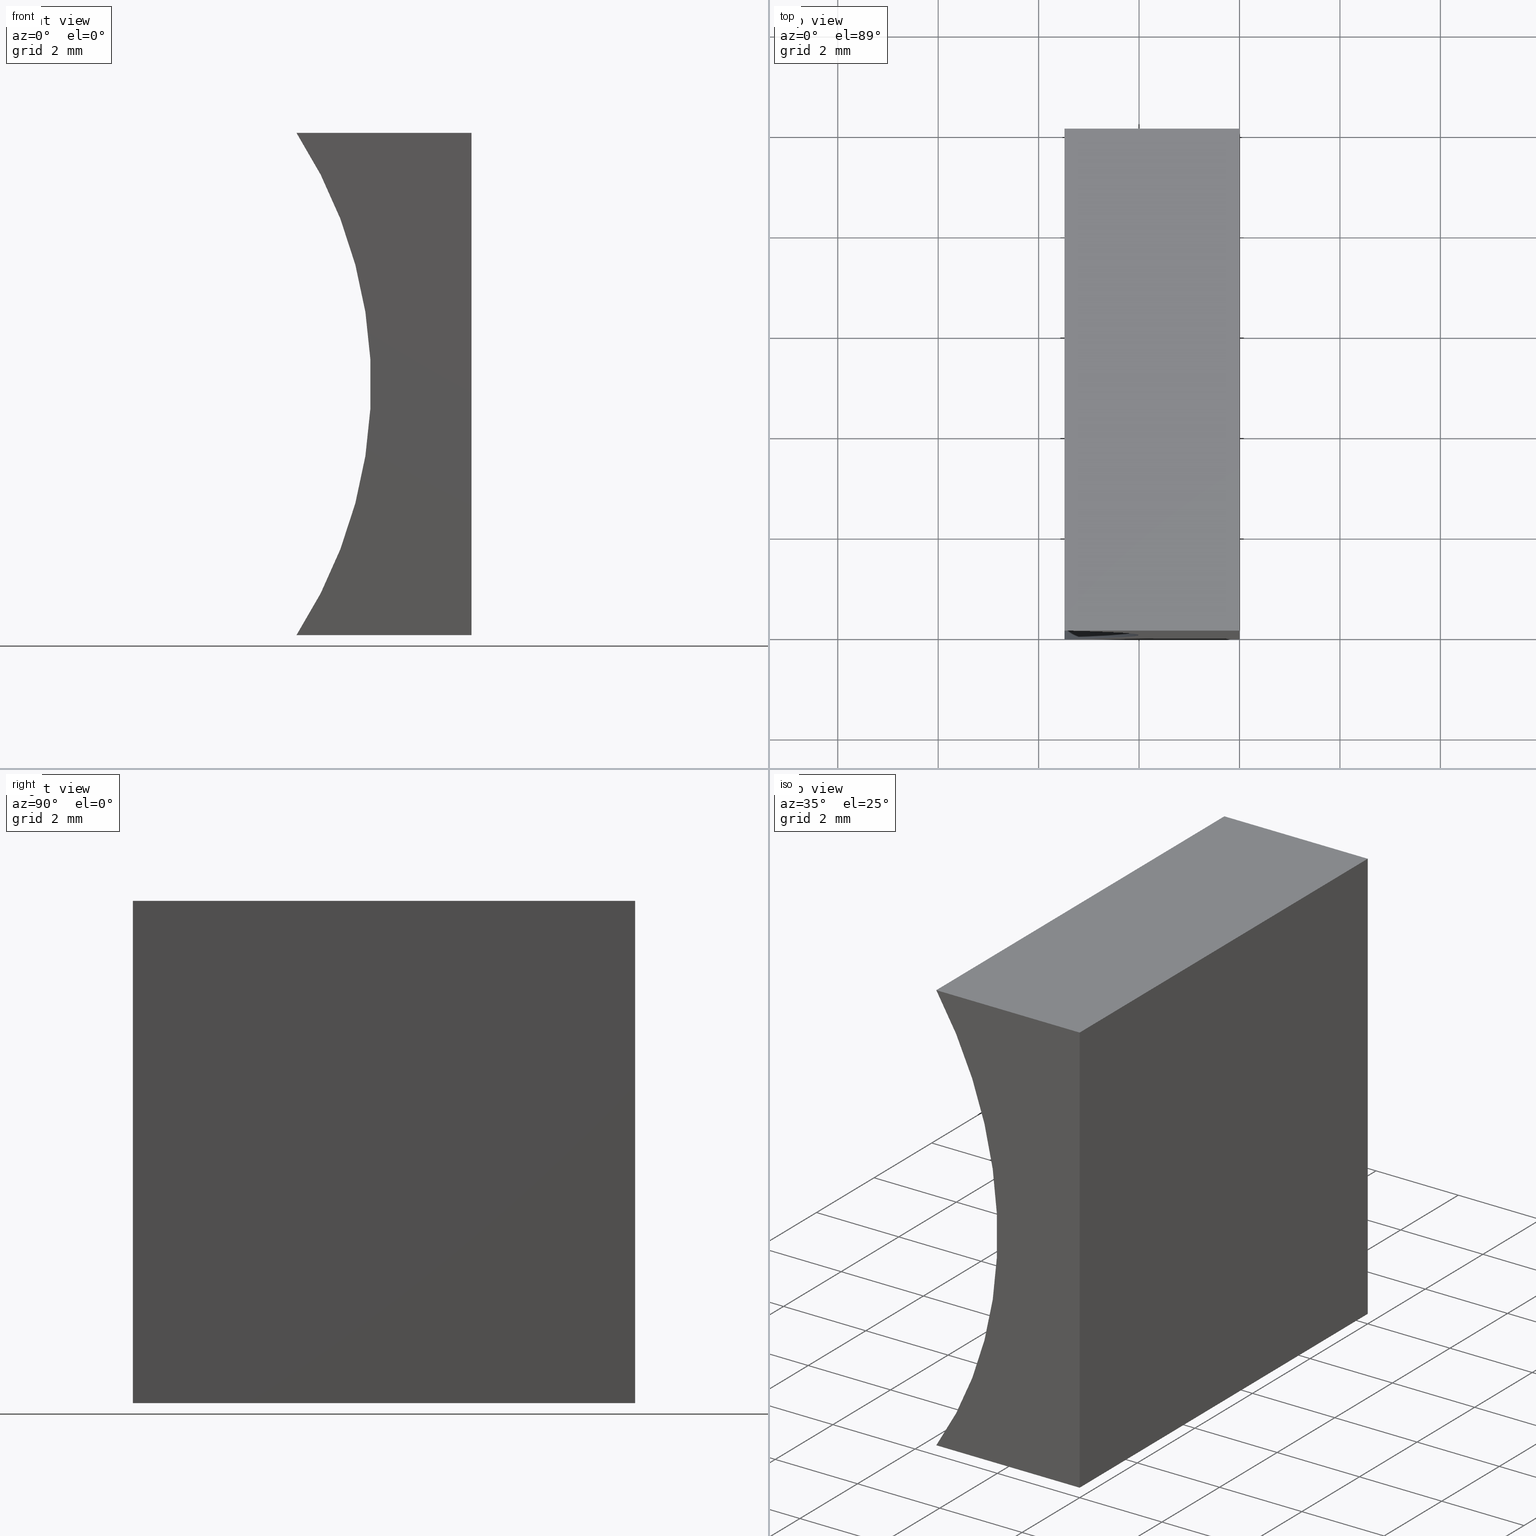
[diagram: canonical four-view strip — front | top / right | iso, engineering-drawing reading convention]
A machine part, canonical four-view strip (front | top / right | iso — engineering-drawing reading convention). The complete STEP part file that produces these views, byte-faithful:
ISO-10303-21;
HEADER;
FILE_DESCRIPTION (( 'STEP AP214' ),
    '1' );
FILE_NAME ('155465.STEP',
    '2019-07-03T03:49:38',
    ( 'user' ),
    ( '΢���й�' ),
    'SwSTEP 2.0',
    'SolidWorks 2016',
    '' );
FILE_SCHEMA (( 'AUTOMOTIVE_DESIGN' ));
ENDSEC;

DATA;
#1 = EDGE_CURVE ( 'NONE', #100, #26, #16, .T. ) ;
#2 =( LENGTH_UNIT ( ) NAMED_UNIT ( * ) SI_UNIT ( .MILLI., .METRE. ) );
#3 = ORIENTED_EDGE ( 'NONE', *, *, #176, .F. ) ;
#4 = LINE ( 'NONE', #69, #18 ) ;
#5 = DIRECTION ( 'NONE',  ( -1.000000000000000000, 0.0000000000000000000, -0.0000000000000000000 ) ) ;
#6 = PRODUCT_RELATED_PRODUCT_CATEGORY ( 'part', '', ( #42 ) ) ;
#7 = CARTESIAN_POINT ( 'NONE',  ( -3.485001628664668800, 0.0000000000000000000, 10.00000000000000000 ) ) ;
#8 = DIRECTION ( 'NONE',  ( 1.701271715540641700E-016, -0.0000000000000000000, 1.000000000000000000 ) ) ;
#9 = LINE ( 'NONE', #144, #12 ) ;
#10 = SURFACE_SIDE_STYLE ('',( #76 ) ) ;
#11 = PRESENTATION_LAYER_ASSIGNMENT (  '', '', ( #103 ) ) ;
#12 = VECTOR ( 'NONE', #32, 1000.000000000000000 ) ;
#13 =( GEOMETRIC_REPRESENTATION_CONTEXT ( 3 ) GLOBAL_UNCERTAINTY_ASSIGNED_CONTEXT ( ( #107 ) ) GLOBAL_UNIT_ASSIGNED_CONTEXT ( ( #173, #62, #189 ) ) REPRESENTATION_CONTEXT ( 'NONE', 'WORKASPACE' ) );
#14 = EDGE_LOOP ( 'NONE', ( #67, #156, #117, #56 ) ) ;
#15 = DIRECTION ( 'NONE',  ( 0.0000000000000000000, 0.0000000000000000000, 1.000000000000000000 ) ) ;
#16 = CIRCLE ( 'NONE', #204, 9.159999999999998400 ) ;
#17 = EDGE_CURVE ( 'NONE', #105, #137, #150, .T. ) ;
#18 = VECTOR ( 'NONE', #97, 1000.000000000000000 ) ;
#19 = CARTESIAN_POINT ( 'NONE',  ( 0.0000000000000000000, 10.00000000000000000, 0.0000000000000000000 ) ) ;
#20 = CARTESIAN_POINT ( 'NONE',  ( 0.0000000000000000000, 0.0000000000000000000, 0.0000000000000000000 ) ) ;
#21 = CARTESIAN_POINT ( 'NONE',  ( -11.16000000000000000, 0.0000000000000000000, 5.000000000000000900 ) ) ;
#22 = FILL_AREA_STYLE_COLOUR ( '', #202 ) ;
#23 =( LENGTH_UNIT ( ) NAMED_UNIT ( * ) SI_UNIT ( .MILLI., .METRE. ) );
#24 = VECTOR ( 'NONE', #160, 1000.000000000000000 ) ;
#25 = EDGE_LOOP ( 'NONE', ( #39, #58, #73, #3 ) ) ;
#26 = VERTEX_POINT ( 'NONE', #109 ) ;
#27 = LINE ( 'NONE', #126, #112 ) ;
#28 = DIRECTION ( 'NONE',  ( 1.000000000000000000, -0.0000000000000000000, -0.0000000000000000000 ) ) ;
#29 = DIRECTION ( 'NONE',  ( 0.0000000000000000000, 0.0000000000000000000, -1.000000000000000000 ) ) ;
#30 = PRESENTATION_LAYER_ASSIGNMENT (  '', '', ( #55 ) ) ;
#31 = FACE_OUTER_BOUND ( 'NONE', #14, .T. ) ;
#32 = DIRECTION ( 'NONE',  ( -1.000000000000000000, 0.0000000000000000000, 1.701271715540642000E-016 ) ) ;
#33 = MECHANICAL_DESIGN_GEOMETRIC_PRESENTATION_REPRESENTATION (  '', ( #55 ), #13 ) ;
#34 = DIRECTION ( 'NONE',  ( 0.0000000000000000000, -0.0000000000000000000, 1.000000000000000000 ) ) ;
#35 = VECTOR ( 'NONE', #66, 1000.000000000000000 ) ;
#36 = CARTESIAN_POINT ( 'NONE',  ( -11.16000000000000000, 0.0000000000000000000, 5.000000000000000900 ) ) ;
#37 =( NAMED_UNIT ( * ) SI_UNIT ( $, .STERADIAN. ) SOLID_ANGLE_UNIT ( ) );
#38 = EDGE_CURVE ( 'NONE', #137, #45, #172, .T. ) ;
#39 = ORIENTED_EDGE ( 'NONE', *, *, #38, .F. ) ;
#40 = AXIS2_PLACEMENT_3D ( 'NONE', #124, #121, #29 ) ;
#41 = ORIENTED_EDGE ( 'NONE', *, *, #151, .T. ) ;
#42 = PRODUCT ( '155465', '155465', '', ( #166 ) ) ;
#43 = AXIS2_PLACEMENT_3D ( 'NONE', #64, #98, #5 ) ;
#44 = SURFACE_STYLE_USAGE ( .BOTH. , #157 ) ;
#45 = VERTEX_POINT ( 'NONE', #174 ) ;
#46 = CARTESIAN_POINT ( 'NONE',  ( -3.485001628664670600, 10.00000000000000000, 1.734723475976807100E-015 ) ) ;
#47 = DIRECTION ( 'NONE',  ( -1.000000000000000000, 0.0000000000000000000, 6.123233995736766000E-017 ) ) ;
#48 = AXIS2_PLACEMENT_3D ( 'NONE', #36, #152, #50 ) ;
#49 = CARTESIAN_POINT ( 'NONE',  ( 6.123233995736766300E-016, 0.0000000000000000000, 10.00000000000000000 ) ) ;
#50 = DIRECTION ( 'NONE',  ( 0.0000000000000000000, 0.0000000000000000000, 1.000000000000000000 ) ) ;
#51 = ORIENTED_EDGE ( 'NONE', *, *, #130, .F. ) ;
#52 =( NAMED_UNIT ( * ) PLANE_ANGLE_UNIT ( ) SI_UNIT ( $, .RADIAN. ) );
#53 = VECTOR ( 'NONE', #163, 1000.000000000000000 ) ;
#54 = DIRECTION ( 'NONE',  ( 0.0000000000000000000, 0.0000000000000000000, 1.000000000000000000 ) ) ;
#55 = STYLED_ITEM ( 'NONE', ( #115 ), #90 ) ;
#56 = ORIENTED_EDGE ( 'NONE', *, *, #17, .T. ) ;
#57 = ADVANCED_FACE ( 'NONE', ( #89 ), #93, .T. ) ;
#58 = ORIENTED_EDGE ( 'NONE', *, *, #151, .F. ) ;
#59 = UNCERTAINTY_MEASURE_WITH_UNIT (LENGTH_MEASURE( 1.000000000000000100E-005 ), #2, 'distance_accuracy_value', 'NONE');
#60 =( GEOMETRIC_REPRESENTATION_CONTEXT ( 3 ) GLOBAL_UNCERTAINTY_ASSIGNED_CONTEXT ( ( #149 ) ) GLOBAL_UNIT_ASSIGNED_CONTEXT ( ( #23, #133, #37 ) ) REPRESENTATION_CONTEXT ( 'NONE', 'WORKASPACE' ) );
#61 = VECTOR ( 'NONE', #80, 1000.000000000000000 ) ;
#62 =( NAMED_UNIT ( * ) PLANE_ANGLE_UNIT ( ) SI_UNIT ( $, .RADIAN. ) );
#63 = AXIS2_PLACEMENT_3D ( 'NONE', #159, #128, #34 ) ;
#64 = CARTESIAN_POINT ( 'NONE',  ( 6.123233995736766300E-016, 10.00000000000000000, 10.00000000000000000 ) ) ;
#65 = CARTESIAN_POINT ( 'NONE',  ( 0.0000000000000000000, 0.0000000000000000000, 0.0000000000000000000 ) ) ;
#66 = DIRECTION ( 'NONE',  ( -6.123233995736766000E-017, -0.0000000000000000000, -1.000000000000000000 ) ) ;
#67 = ORIENTED_EDGE ( 'NONE', *, *, #38, .T. ) ;
#68 = LINE ( 'NONE', #49, #108 ) ;
#69 = CARTESIAN_POINT ( 'NONE',  ( -3.485001628664670600, 10.00000000000000000, 1.734723475976807100E-015 ) ) ;
#70 = APPLICATION_CONTEXT ( 'automotive_design' ) ;
#71 = EDGE_CURVE ( 'NONE', #105, #100, #9, .T. ) ;
#72 = ADVANCED_FACE ( 'NONE', ( #168 ), #95, .F. ) ;
#73 = ORIENTED_EDGE ( 'NONE', *, *, #118, .F. ) ;
#74 = FACE_OUTER_BOUND ( 'NONE', #119, .T. ) ;
#75 = VERTEX_POINT ( 'NONE', #158 ) ;
#76 = SURFACE_STYLE_FILL_AREA ( #102 ) ;
#77 = PRODUCT_DEFINITION ( 'δ֪', '', #200, #183 ) ;
#78 =( GEOMETRIC_REPRESENTATION_CONTEXT ( 3 ) GLOBAL_UNCERTAINTY_ASSIGNED_CONTEXT ( ( #59 ) ) GLOBAL_UNIT_ASSIGNED_CONTEXT ( ( #2, #52, #164 ) ) REPRESENTATION_CONTEXT ( 'NONE', 'WORKASPACE' ) );
#79 = EDGE_LOOP ( 'NONE', ( #136, #122, #165, #134 ) ) ;
#80 = DIRECTION ( 'NONE',  ( -1.000000000000000000, 0.0000000000000000000, 1.701271715540642000E-016 ) ) ;
#81 = DIRECTION ( 'NONE',  ( -0.0000000000000000000, -1.000000000000000000, -0.0000000000000000000 ) ) ;
#82 = DIRECTION ( 'NONE',  ( 0.0000000000000000000, 1.000000000000000000, 0.0000000000000000000 ) ) ;
#83 = ORIENTED_EDGE ( 'NONE', *, *, #17, .F. ) ;
#84 = DIRECTION ( 'NONE',  ( -6.123233995736766000E-017, -0.0000000000000000000, -1.000000000000000000 ) ) ;
#85 = PRESENTATION_STYLE_ASSIGNMENT (( #114 ) ) ;
#86 = CARTESIAN_POINT ( 'NONE',  ( -3.485001628664668800, 10.00000000000000000, 10.00000000000000000 ) ) ;
#87 = ORIENTED_EDGE ( 'NONE', *, *, #170, .T. ) ;
#88 = APPLICATION_PROTOCOL_DEFINITION ( 'draft international standard', 'automotive_design', 1998, #70 ) ;
#89 = FACE_OUTER_BOUND ( 'NONE', #92, .T. ) ;
#90 = MANIFOLD_SOLID_BREP ( '͹̨-����1', #139 ) ;
#91 = ADVANCED_BREP_SHAPE_REPRESENTATION ( '155465', ( #90, #187 ), #78 ) ;
#92 = EDGE_LOOP ( 'NONE', ( #198, #178, #153, #188 ) ) ;
#93 = PLANE ( 'NONE',  #63 ) ;
#94 = CARTESIAN_POINT ( 'NONE',  ( -11.16000000000000000, 10.00000000000000000, 5.000000000000000900 ) ) ;
#95 = CYLINDRICAL_SURFACE ( 'NONE', #40, 9.159999999999998400 ) ;
#96 = LINE ( 'NONE', #131, #53 ) ;
#97 = DIRECTION ( 'NONE',  ( -0.0000000000000000000, -1.000000000000000000, -0.0000000000000000000 ) ) ;
#98 = DIRECTION ( 'NONE',  ( 0.0000000000000000000, 0.0000000000000000000, -1.000000000000000000 ) ) ;
#99 = DIRECTION ( 'NONE',  ( -0.0000000000000000000, -1.000000000000000000, -0.0000000000000000000 ) ) ;
#100 = VERTEX_POINT ( 'NONE', #46 ) ;
#101 = SHAPE_DEFINITION_REPRESENTATION ( #197, #91 ) ;
#102 = FILL_AREA_STYLE ('',( #22 ) ) ;
#103 = STYLED_ITEM ( 'NONE', ( #85 ), #91 ) ;
#104 = MECHANICAL_DESIGN_GEOMETRIC_PRESENTATION_REPRESENTATION (  '', ( #103 ), #60 ) ;
#105 = VERTEX_POINT ( 'NONE', #148 ) ;
#106 = EDGE_LOOP ( 'NONE', ( #41, #83, #203, #201 ) ) ;
#107 = UNCERTAINTY_MEASURE_WITH_UNIT (LENGTH_MEASURE( 1.000000000000000100E-005 ), #173, 'distance_accuracy_value', 'NONE');
#108 = VECTOR ( 'NONE', #28, 1000.000000000000000 ) ;
#109 = CARTESIAN_POINT ( 'NONE',  ( -3.485001628664668800, 10.00000000000000000, 10.00000000000000000 ) ) ;
#110 = FACE_OUTER_BOUND ( 'NONE', #25, .T. ) ;
#111 = CARTESIAN_POINT ( 'NONE',  ( 0.0000000000000000000, 10.00000000000000000, 0.0000000000000000000 ) ) ;
#112 = VECTOR ( 'NONE', #161, 1000.000000000000000 ) ;
#113 = DIRECTION ( 'NONE',  ( 1.000000000000000000, 0.0000000000000000000, -1.701271715540641700E-016 ) ) ;
#114 = SURFACE_STYLE_USAGE ( .BOTH. , #10 ) ;
#115 = PRESENTATION_STYLE_ASSIGNMENT (( #44 ) ) ;
#116 = ADVANCED_FACE ( 'NONE', ( #145 ), #140, .F. ) ;
#117 = ORIENTED_EDGE ( 'NONE', *, *, #71, .F. ) ;
#118 = EDGE_CURVE ( 'NONE', #185, #162, #68, .T. ) ;
#119 = EDGE_LOOP ( 'NONE', ( #193, #171, #51, #87 ) ) ;
#120 = VECTOR ( 'NONE', #84, 1000.000000000000000 ) ;
#121 = DIRECTION ( 'NONE',  ( -0.0000000000000000000, -1.000000000000000000, -0.0000000000000000000 ) ) ;
#122 = ORIENTED_EDGE ( 'NONE', *, *, #170, .F. ) ;
#123 = FILL_AREA_STYLE ('',( #142 ) ) ;
#124 = CARTESIAN_POINT ( 'NONE',  ( -11.16000000000000000, 10.00000000000000000, 5.000000000000000900 ) ) ;
#125 = CARTESIAN_POINT ( 'NONE',  ( 0.0000000000000000000, 10.00000000000000000, 0.0000000000000000000 ) ) ;
#126 = CARTESIAN_POINT ( 'NONE',  ( 6.123233995736766300E-016, 10.00000000000000000, 10.00000000000000000 ) ) ;
#127 = SURFACE_STYLE_FILL_AREA ( #123 ) ;
#128 = DIRECTION ( 'NONE',  ( 0.0000000000000000000, 1.000000000000000000, 0.0000000000000000000 ) ) ;
#129 = PLANE ( 'NONE',  #146 ) ;
#130 = EDGE_CURVE ( 'NONE', #26, #75, #27, .T. ) ;
#131 = CARTESIAN_POINT ( 'NONE',  ( 6.123233995736766300E-016, 10.00000000000000000, 10.00000000000000000 ) ) ;
#132 = CARTESIAN_POINT ( 'NONE',  ( 0.0000000000000000000, 0.0000000000000000000, 0.0000000000000000000 ) ) ;
#133 =( NAMED_UNIT ( * ) PLANE_ANGLE_UNIT ( ) SI_UNIT ( $, .RADIAN. ) );
#134 = ORIENTED_EDGE ( 'NONE', *, *, #190, .T. ) ;
#135 = ADVANCED_FACE ( 'NONE', ( #74 ), #192, .F. ) ;
#136 = ORIENTED_EDGE ( 'NONE', *, *, #176, .T. ) ;
#137 = VERTEX_POINT ( 'NONE', #65 ) ;
#138 = AXIS2_PLACEMENT_3D ( 'NONE', #19, #8, #113 ) ;
#139 = CLOSED_SHELL ( 'NONE', ( #199, #72, #135, #116, #57, #184 ) ) ;
#140 = PLANE ( 'NONE',  #167 ) ;
#141 = EDGE_CURVE ( 'NONE', #75, #105, #154, .T. ) ;
#142 = FILL_AREA_STYLE_COLOUR ( '', #181 ) ;
#143 = CARTESIAN_POINT ( 'NONE',  ( 0.0000000000000000000, 10.00000000000000000, 0.0000000000000000000 ) ) ;
#144 = CARTESIAN_POINT ( 'NONE',  ( 0.0000000000000000000, 10.00000000000000000, 0.0000000000000000000 ) ) ;
#145 = FACE_OUTER_BOUND ( 'NONE', #106, .T. ) ;
#146 = AXIS2_PLACEMENT_3D ( 'NONE', #21, #82, #191 ) ;
#147 = DIRECTION ( 'NONE',  ( 6.123233995736766000E-017, 0.0000000000000000000, 1.000000000000000000 ) ) ;
#148 = CARTESIAN_POINT ( 'NONE',  ( 0.0000000000000000000, 10.00000000000000000, 0.0000000000000000000 ) ) ;
#149 = UNCERTAINTY_MEASURE_WITH_UNIT (LENGTH_MEASURE( 1.000000000000000100E-005 ), #23, 'distance_accuracy_value', 'NONE');
#150 = LINE ( 'NONE', #125, #24 ) ;
#151 = EDGE_CURVE ( 'NONE', #162, #137, #169, .T. ) ;
#152 = DIRECTION ( 'NONE',  ( -0.0000000000000000000, -1.000000000000000000, -0.0000000000000000000 ) ) ;
#153 = ORIENTED_EDGE ( 'NONE', *, *, #130, .T. ) ;
#154 = LINE ( 'NONE', #111, #120 ) ;
#155 = CIRCLE ( 'NONE', #48, 9.159999999999998400 ) ;
#156 = ORIENTED_EDGE ( 'NONE', *, *, #190, .F. ) ;
#157 = SURFACE_SIDE_STYLE ('',( #127 ) ) ;
#158 = CARTESIAN_POINT ( 'NONE',  ( 6.123233995736766300E-016, 10.00000000000000000, 10.00000000000000000 ) ) ;
#159 = CARTESIAN_POINT ( 'NONE',  ( -11.16000000000000000, 10.00000000000000000, 5.000000000000000900 ) ) ;
#160 = DIRECTION ( 'NONE',  ( -0.0000000000000000000, -1.000000000000000000, -0.0000000000000000000 ) ) ;
#161 = DIRECTION ( 'NONE',  ( 1.000000000000000000, -0.0000000000000000000, -0.0000000000000000000 ) ) ;
#162 = VERTEX_POINT ( 'NONE', #177 ) ;
#163 = DIRECTION ( 'NONE',  ( -0.0000000000000000000, -1.000000000000000000, -0.0000000000000000000 ) ) ;
#164 =( NAMED_UNIT ( * ) SI_UNIT ( $, .STERADIAN. ) SOLID_ANGLE_UNIT ( ) );
#165 = ORIENTED_EDGE ( 'NONE', *, *, #1, .F. ) ;
#166 = PRODUCT_CONTEXT ( 'NONE', #195, 'mechanical' ) ;
#167 = AXIS2_PLACEMENT_3D ( 'NONE', #143, #47, #147 ) ;
#168 = FACE_OUTER_BOUND ( 'NONE', #79, .T. ) ;
#169 = LINE ( 'NONE', #20, #35 ) ;
#170 = EDGE_CURVE ( 'NONE', #26, #185, #196, .T. ) ;
#171 = ORIENTED_EDGE ( 'NONE', *, *, #186, .F. ) ;
#172 = LINE ( 'NONE', #175, #61 ) ;
#173 =( LENGTH_UNIT ( ) NAMED_UNIT ( * ) SI_UNIT ( .MILLI., .METRE. ) );
#174 = CARTESIAN_POINT ( 'NONE',  ( -3.485001628664670600, 0.0000000000000000000, 1.734723475976807100E-015 ) ) ;
#175 = CARTESIAN_POINT ( 'NONE',  ( 0.0000000000000000000, 0.0000000000000000000, 0.0000000000000000000 ) ) ;
#176 = EDGE_CURVE ( 'NONE', #45, #185, #155, .T. ) ;
#177 = CARTESIAN_POINT ( 'NONE',  ( 6.123233995736766300E-016, 0.0000000000000000000, 10.00000000000000000 ) ) ;
#178 = ORIENTED_EDGE ( 'NONE', *, *, #1, .T. ) ;
#179 = APPLICATION_PROTOCOL_DEFINITION ( 'draft international standard', 'automotive_design', 1998, #195 ) ;
#180 = DIRECTION ( 'NONE',  ( 1.000000000000000000, 0.0000000000000000000, 0.0000000000000000000 ) ) ;
#181 = COLOUR_RGB ( '',1.000000000000000000, 1.000000000000000000, 1.000000000000000000 ) ;
#182 = VECTOR ( 'NONE', #99, 1000.000000000000000 ) ;
#183 = PRODUCT_DEFINITION_CONTEXT ( 'detailed design', #70, 'design' ) ;
#184 = ADVANCED_FACE ( 'NONE', ( #110 ), #129, .F. ) ;
#185 = VERTEX_POINT ( 'NONE', #7 ) ;
#186 = EDGE_CURVE ( 'NONE', #75, #162, #96, .T. ) ;
#187 = AXIS2_PLACEMENT_3D ( 'NONE', #132, #54, #180 ) ;
#188 = ORIENTED_EDGE ( 'NONE', *, *, #141, .T. ) ;
#189 =( NAMED_UNIT ( * ) SI_UNIT ( $, .STERADIAN. ) SOLID_ANGLE_UNIT ( ) );
#190 = EDGE_CURVE ( 'NONE', #100, #45, #4, .T. ) ;
#191 = DIRECTION ( 'NONE',  ( 0.0000000000000000000, -0.0000000000000000000, 1.000000000000000000 ) ) ;
#192 = PLANE ( 'NONE',  #43 ) ;
#193 = ORIENTED_EDGE ( 'NONE', *, *, #118, .T. ) ;
#194 = PLANE ( 'NONE',  #138 ) ;
#195 = APPLICATION_CONTEXT ( 'automotive_design' ) ;
#196 = LINE ( 'NONE', #86, #182 ) ;
#197 = PRODUCT_DEFINITION_SHAPE ( 'NONE', 'NONE',  #77 ) ;
#198 = ORIENTED_EDGE ( 'NONE', *, *, #71, .T. ) ;
#199 = ADVANCED_FACE ( 'NONE', ( #31 ), #194, .F. ) ;
#200 = PRODUCT_DEFINITION_FORMATION_WITH_SPECIFIED_SOURCE ( '�κ�', '', #42, .NOT_KNOWN. ) ;
#201 = ORIENTED_EDGE ( 'NONE', *, *, #186, .T. ) ;
#202 = COLOUR_RGB ( '',1.000000000000000000, 1.000000000000000000, 1.000000000000000000 ) ;
#203 = ORIENTED_EDGE ( 'NONE', *, *, #141, .F. ) ;
#204 = AXIS2_PLACEMENT_3D ( 'NONE', #94, #81, #15 ) ;
ENDSEC;
END-ISO-10303-21;
